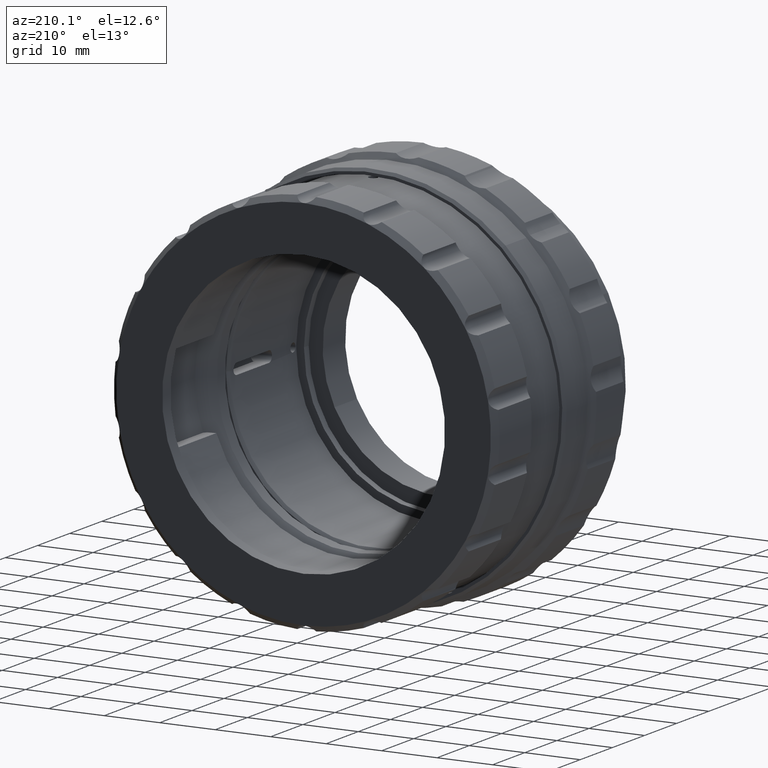
[diagram: clean part render]
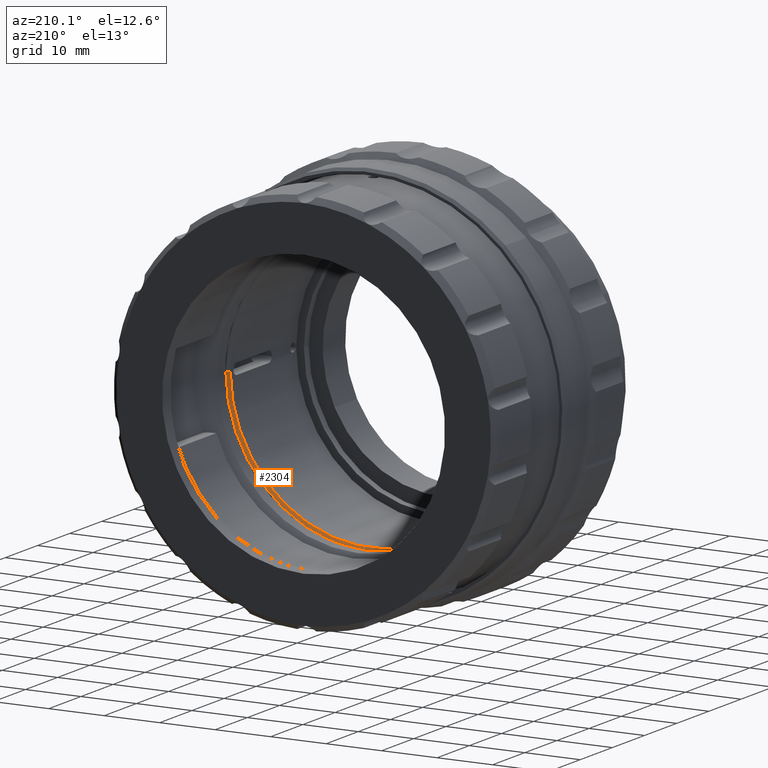
[diagram: same view with one face highlighted and labeled with its STEP entity id]
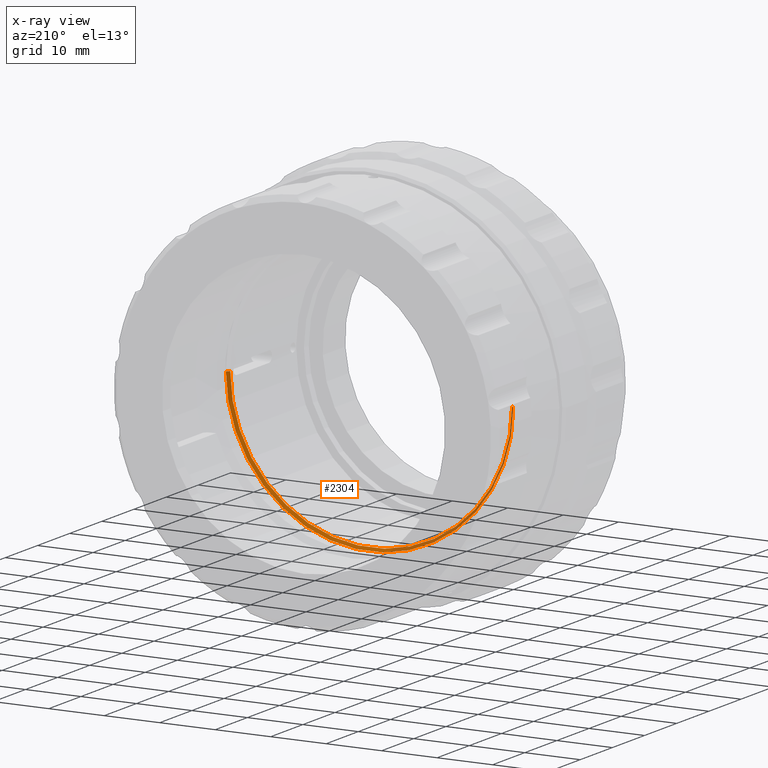
[diagram: x-ray of the same camera — body ghosted, the highlighted face saturated]
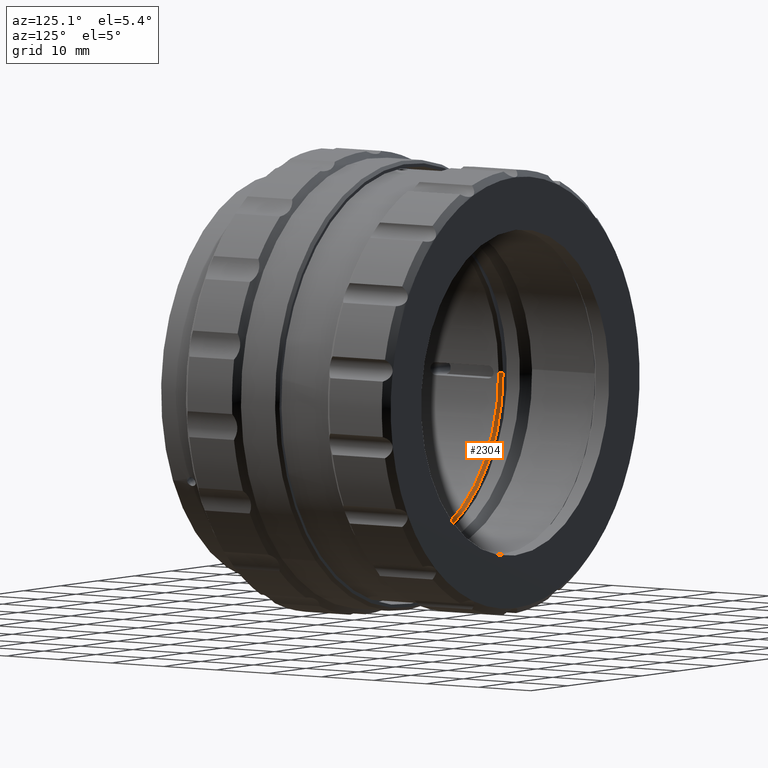
[diagram: same view with one face highlighted and labeled with its STEP entity id]
A machine part, auxiliary view. The second image highlights one B-rep face of the part: STEP entity #2304.
The next image is the same camera in x-ray: the body ghosted, the highlighted face saturated — about 29% of this face is hidden behind the body in this view.
A second angle (auxiliary view) of the same face is appended — the face is thin or edge-on in the first view.
In plain terms, the highlighted conical surface has half-angle 45 deg.
Its self-contained STEP definition (entity closure, byte-faithful):
#110 = EDGE_LOOP ( 'NONE', ( #6304, #5853, #1760, #316 ) ) ;
#260 = VERTEX_POINT ( 'NONE', #4484 ) ;
#316 = ORIENTED_EDGE ( 'NONE', *, *, #1529, .F. ) ;
#755 = CARTESIAN_POINT ( 'NONE',  ( -19.42829502739212089, -6.048755687005420434, 44.91748676171806665 ) ) ;
#1529 = EDGE_CURVE ( 'NONE', #4835, #7575, #5088, .T. ) ;
#1760 = ORIENTED_EDGE ( 'NONE', *, *, #3508, .T. ) ;
#1764 = CARTESIAN_POINT ( 'NONE',  ( 5.971701014312827738, -5.548755687005420434, 44.90330644533106863 ) ) ;
#2124 = CONICAL_SURFACE ( 'NONE', #3497, 25.39999999999999858, 0.7853981633974482790 ) ;
#2253 = DIRECTION ( 'NONE',  ( 0.7071066709921666193, 0.7071067811865474617, -0.0003947636959297674960 ) ) ;
#2301 = CARTESIAN_POINT ( 'NONE',  ( 31.37169705601777636, -6.048755687005420434, 44.88912612894407062 ) ) ;
#2304 = ADVANCED_FACE ( 'NONE', ( #7435 ), #2124, .F. ) ;
#2418 = DIRECTION ( 'NONE',  ( -0.7071066709921666193, 0.7071067811865474617, 0.0003947636959296808683 ) ) ;
#3370 = CARTESIAN_POINT ( 'NONE',  ( 5.971701014312827738, -6.048755687005420434, 44.90330644533106863 ) ) ;
#3497 = AXIS2_PLACEMENT_3D ( 'NONE', #3370, #9892, #5826 ) ;
#3508 = EDGE_CURVE ( 'NONE', #260, #7575, #5503, .T. ) ;
#3969 = LINE ( 'NONE', #755, #7367 ) ;
#4484 = CARTESIAN_POINT ( 'NONE',  ( 31.37169705601777636, -6.048755687005420434, 44.88912612894406351 ) ) ;
#4747 = VECTOR ( 'NONE', #2253, 1000.000000000000114 ) ;
#4835 = VERTEX_POINT ( 'NONE', #6357 ) ;
#5088 = CIRCLE ( 'NONE', #8836, 25.90000000000000213 ) ;
#5094 = CIRCLE ( 'NONE', #6959, 25.39999999999999858 ) ;
#5503 = LINE ( 'NONE', #2301, #4747 ) ;
#5709 = EDGE_CURVE ( 'NONE', #10425, #4835, #3969, .T. ) ;
#5826 = DIRECTION ( 'NONE',  ( 0.9999998441616122502, 0.000000000000000000, -0.0005582801727163589842 ) ) ;
#5853 = ORIENTED_EDGE ( 'NONE', *, *, #9110, .T. ) ;
#6304 = ORIENTED_EDGE ( 'NONE', *, *, #5709, .F. ) ;
#6357 = CARTESIAN_POINT ( 'NONE',  ( -19.92829494947292801, -5.548755687005420434, 44.91776590180442241 ) ) ;
#6959 = AXIS2_PLACEMENT_3D ( 'NONE', #7446, #8830, #10545 ) ;
#7170 = CARTESIAN_POINT ( 'NONE',  ( -19.42829502739212089, -6.048755687005420434, 44.91748676171806665 ) ) ;
#7367 = VECTOR ( 'NONE', #2418, 1000.000000000000114 ) ;
#7435 = FACE_OUTER_BOUND ( 'NONE', #110, .T. ) ;
#7446 = CARTESIAN_POINT ( 'NONE',  ( 5.971701014312827738, -6.048755687005420434, 44.90330644533106863 ) ) ;
#7575 = VERTEX_POINT ( 'NONE', #9620 ) ;
#8175 = DIRECTION ( 'NONE',  ( 0.000000000000000000, -1.000000000000000000, 0.000000000000000000 ) ) ;
#8283 = DIRECTION ( 'NONE',  ( -0.9999998441616122502, 0.000000000000000000, 0.0005582801727163536716 ) ) ;
#8830 = DIRECTION ( 'NONE',  ( 0.000000000000000000, -1.000000000000000000, 0.000000000000000000 ) ) ;
#8836 = AXIS2_PLACEMENT_3D ( 'NONE', #1764, #8175, #8283 ) ;
#9110 = EDGE_CURVE ( 'NONE', #10425, #260, #5094, .T. ) ;
#9620 = CARTESIAN_POINT ( 'NONE',  ( 31.87169697809857993, -5.548755687005420434, 44.88884698885771485 ) ) ;
#9892 = DIRECTION ( 'NONE',  ( 0.000000000000000000, 1.000000000000000000, 0.000000000000000000 ) ) ;
#10425 = VERTEX_POINT ( 'NONE', #7170 ) ;
#10545 = DIRECTION ( 'NONE',  ( -0.9999998441616122502, 0.000000000000000000, 0.0005582801727163589842 ) ) ;